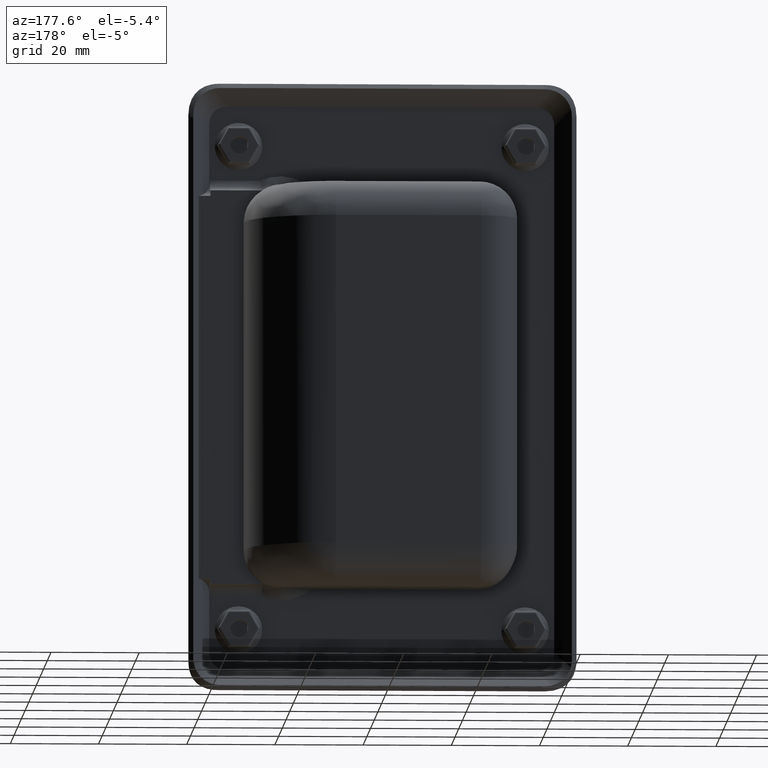
[diagram: clean part render]
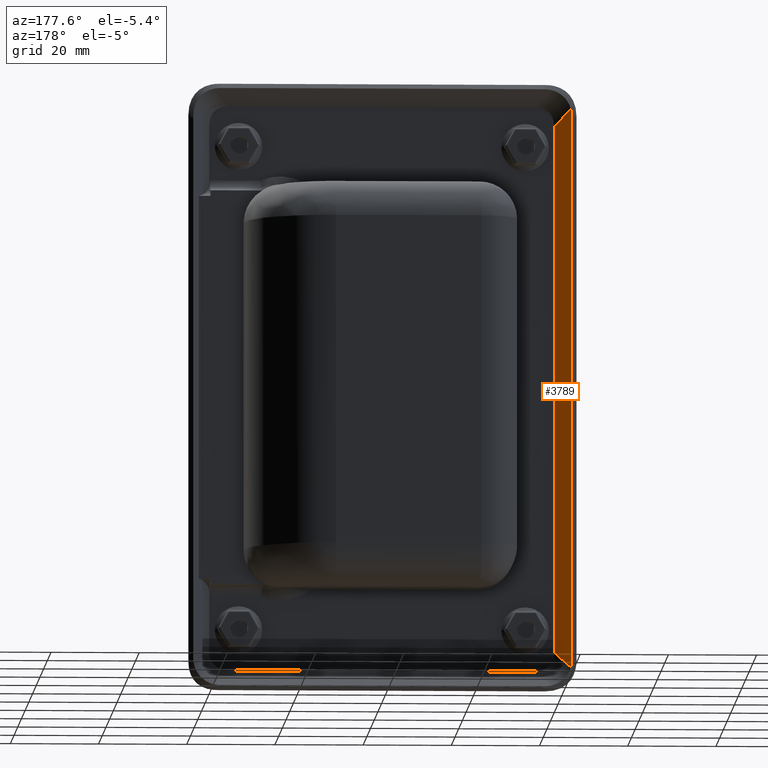
[diagram: same view with one face highlighted and labeled with its STEP entity id]
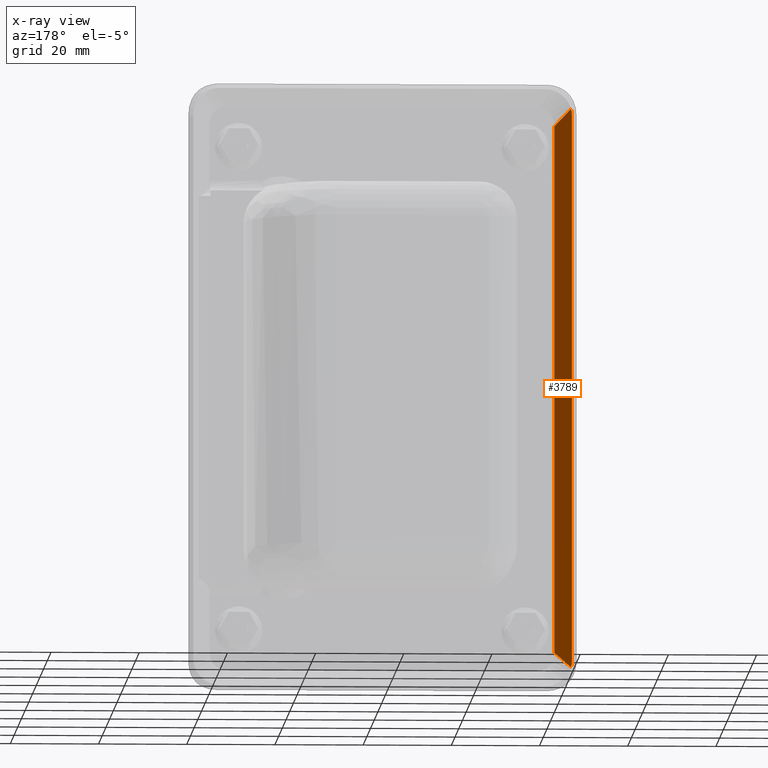
[diagram: x-ray of the same camera — body ghosted, the highlighted face saturated]
A machine part, auxiliary view. The second image highlights one B-rep face of the part: STEP entity #3789.
The next image is the same camera in x-ray: the body ghosted, the highlighted face saturated — about 0% of this face is hidden behind the body in this view.
In plain terms, the highlighted face is a freeform B-spline surface patch.
Its self-contained STEP definition (entity closure, byte-faithful):
#2233=CARTESIAN_POINT('',(-42.939999999825197,4.879066376115479,61.939999999809800));
#2234=VERTEX_POINT('',#2233);
#2257=CARTESIAN_POINT('',(-42.735554957559550,4.674621333849800,63.492914270425302));
#2258=VERTEX_POINT('',#2257);
#2271=CARTESIAN_POINT('',(-42.939999999825197,4.879066376115479,61.939999999809800));
#2272=CARTESIAN_POINT('',(-42.939121927547077,4.878188303837288,62.469472317813761));
#2273=CARTESIAN_POINT('',(-42.869413028655273,4.808479404945729,62.998456526919973));
#2274=CARTESIAN_POINT('',(-42.735554957559550,4.674621333849800,63.492914270425302));
#2275=B_SPLINE_CURVE_WITH_KNOTS('',3,(#2271,#2272,#2273,#2274),.UNSPECIFIED.,.F.,.U.,(4,4),(7.657996E-009,1.588308114856895),.UNSPECIFIED.);
#2276=EDGE_CURVE('',#2234,#2258,#2275,.T.);
#2295=CARTESIAN_POINT('',(-39.120933623709753,1.060000000000000,59.878292936574503));
#2296=VERTEX_POINT('',#2295);
#2312=CARTESIAN_POINT('',(-42.735554957559550,4.674621333849800,63.492914270425302));
#2313=CARTESIAN_POINT('',(-39.120933623709753,1.060000000000000,59.878292936574503));
#2314=QUASI_UNIFORM_CURVE('',1,(#2312,#2313),.UNSPECIFIED.,.F.,.U.);
#2315=EDGE_CURVE('',#2258,#2296,#2314,.T.);
#2348=CARTESIAN_POINT('',(-42.939999999825197,4.879066376115479,-61.940000000188199));
#2349=VERTEX_POINT('',#2348);
#2355=CARTESIAN_POINT('',(-42.735554957559650,4.674621333849901,-63.492914270803396));
#2356=VERTEX_POINT('',#2355);
#2357=CARTESIAN_POINT('',(-42.735554957559650,4.674621333849901,-63.492914270803396));
#2358=CARTESIAN_POINT('',(-42.869845281320643,4.808911657610988,-62.998650726970247));
#2359=CARTESIAN_POINT('',(-42.939577543003359,4.878643919293766,-62.469511450115057));
#2360=CARTESIAN_POINT('',(-42.939999999825197,4.879066376115479,-61.940000000188199));
#2361=B_SPLINE_CURVE_WITH_KNOTS('',3,(#2357,#2358,#2359,#2360),.UNSPECIFIED.,.F.,.U.,(4,4),(7.864349E-009,1.588424385333698),.UNSPECIFIED.);
#2362=EDGE_CURVE('',#2356,#2349,#2361,.T.);
#2403=CARTESIAN_POINT('',(-39.120933623709753,1.060000000000000,-59.878292936953500));
#2404=VERTEX_POINT('',#2403);
#2424=CARTESIAN_POINT('',(-39.120933623709753,1.060000000000000,-59.878292936953500));
#2425=CARTESIAN_POINT('',(-42.735554957559650,4.674621333849901,-63.492914270803396));
#2426=QUASI_UNIFORM_CURVE('',1,(#2424,#2425),.UNSPECIFIED.,.F.,.U.);
#2427=EDGE_CURVE('',#2404,#2356,#2426,.T.);
#3768=CARTESIAN_POINT('',(-38.930171199006033,0.869237575296317,-69.835858544418812));
#3769=CARTESIAN_POINT('',(-43.130761605046153,5.069827981336448,-69.835858544418812));
#3770=CARTESIAN_POINT('',(-38.930171199006033,0.869237575296317,69.835859679382480));
#3771=CARTESIAN_POINT('',(-43.130761605046153,5.069827981336448,69.835859679382480));
#3772=B_SPLINE_SURFACE_WITH_KNOTS('',1,1,((#3768,#3770),(#3769,#3771)),.UNSPECIFIED.,.F.,.F.,.U.,(2,2),(2,2),(0.0,5.940531922196256),(0.0,139.671718223801290),.UNSPECIFIED.);
#3773=ORIENTED_EDGE('',*,*,#2427,.T.);
#3774=ORIENTED_EDGE('',*,*,#2362,.T.);
#3775=CARTESIAN_POINT('',(-42.939999999825197,4.879066376115479,-61.940000000188199));
#3776=CARTESIAN_POINT('',(-42.939999999825197,4.879066376115479,61.939999999809800));
#3777=QUASI_UNIFORM_CURVE('',1,(#3775,#3776),.UNSPECIFIED.,.F.,.U.);
#3778=EDGE_CURVE('',#2349,#2234,#3777,.T.);
#3779=ORIENTED_EDGE('',*,*,#3778,.T.);
#3780=ORIENTED_EDGE('',*,*,#2276,.T.);
#3781=ORIENTED_EDGE('',*,*,#2315,.T.);
#3782=CARTESIAN_POINT('',(-39.120933623709753,1.060000000000000,59.878292936574503));
#3783=CARTESIAN_POINT('',(-39.120933623709753,1.060000000000000,-59.878292936953500));
#3784=QUASI_UNIFORM_CURVE('',1,(#3782,#3783),.UNSPECIFIED.,.F.,.U.);
#3785=EDGE_CURVE('',#2296,#2404,#3784,.T.);
#3786=ORIENTED_EDGE('',*,*,#3785,.T.);
#3787=EDGE_LOOP('',(#3773,#3774,#3779,#3780,#3781,#3786));
#3788=FACE_OUTER_BOUND('',#3787,.T.);
#3789=ADVANCED_FACE('',(#3788),#3772,.T.);